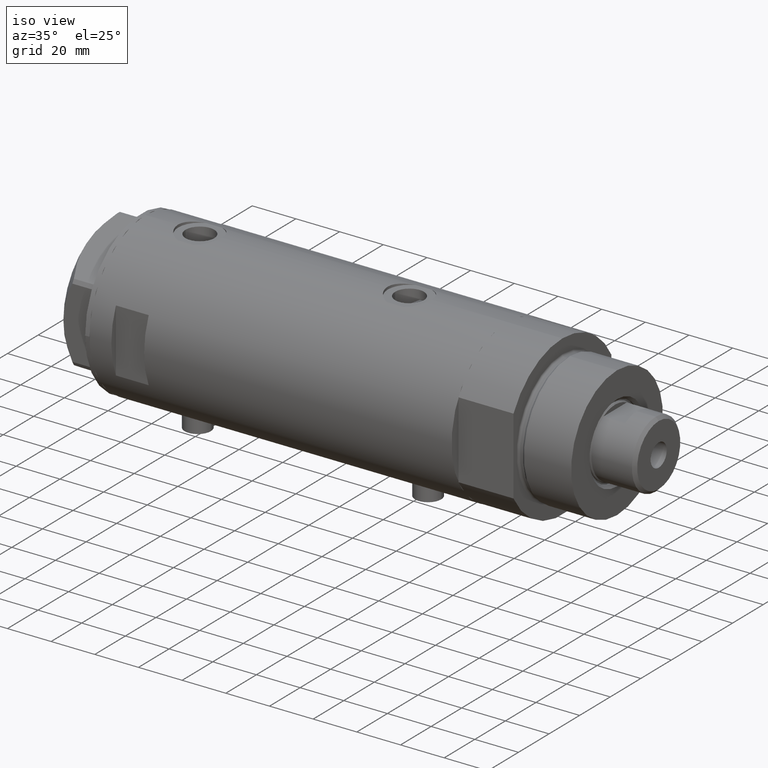
[diagram: clean part render]
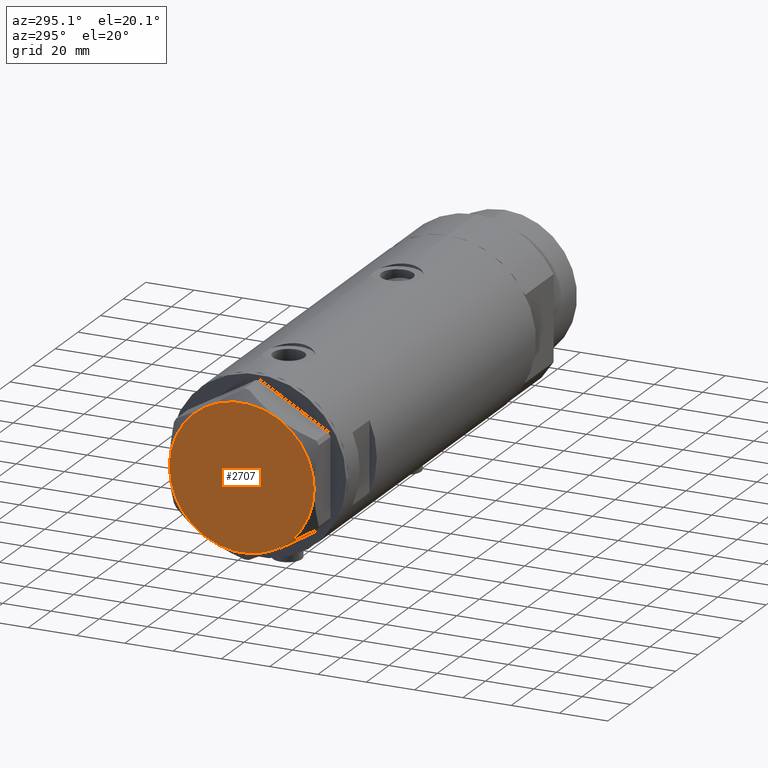
[diagram: tour spotlight — one face highlighted and labeled with its STEP entity id]
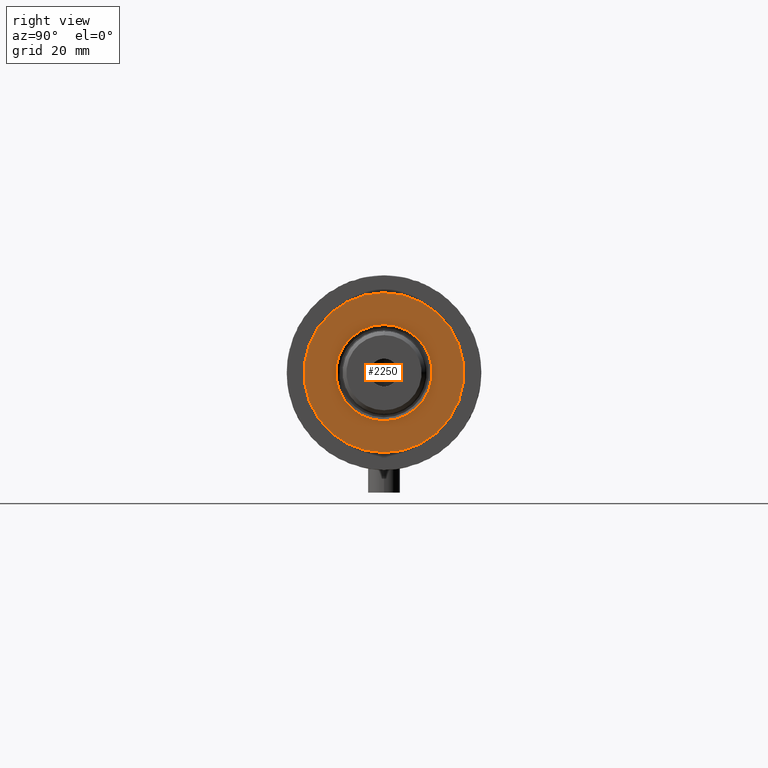
[diagram: tour spotlight — one face highlighted and labeled with its STEP entity id]
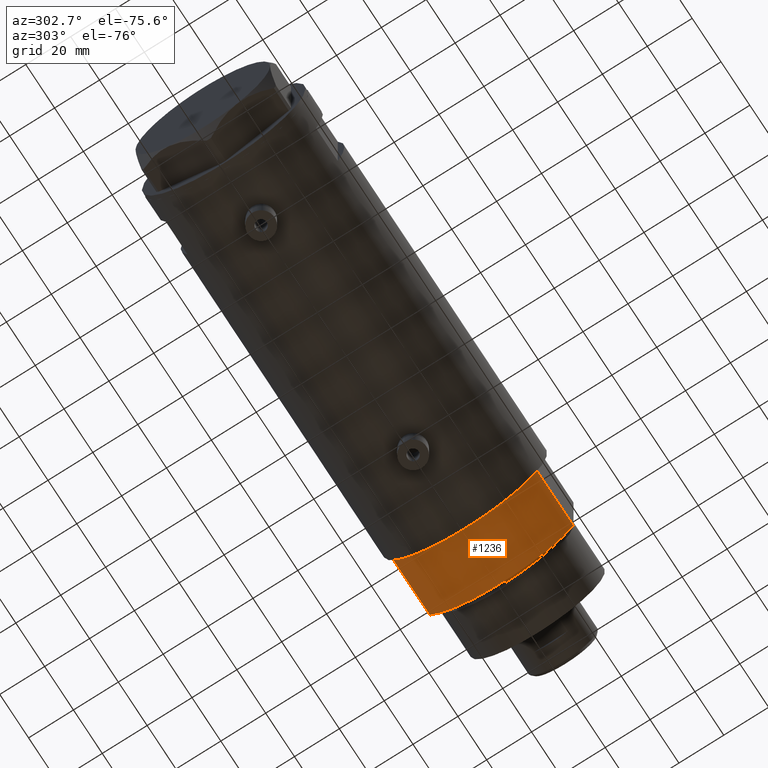
[diagram: tour spotlight — one face highlighted and labeled with its STEP entity id]
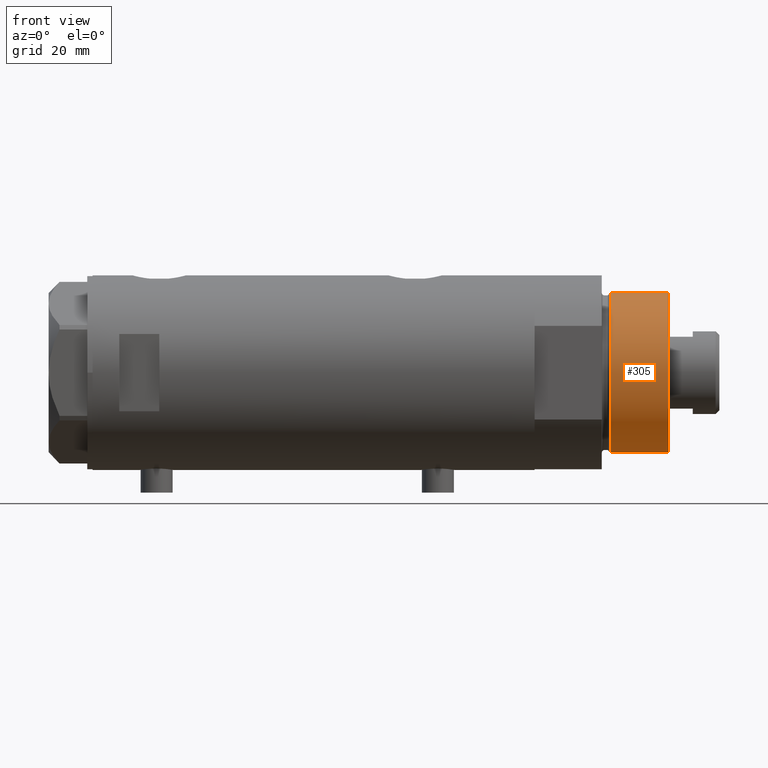
[diagram: tour spotlight — one face highlighted and labeled with its STEP entity id]
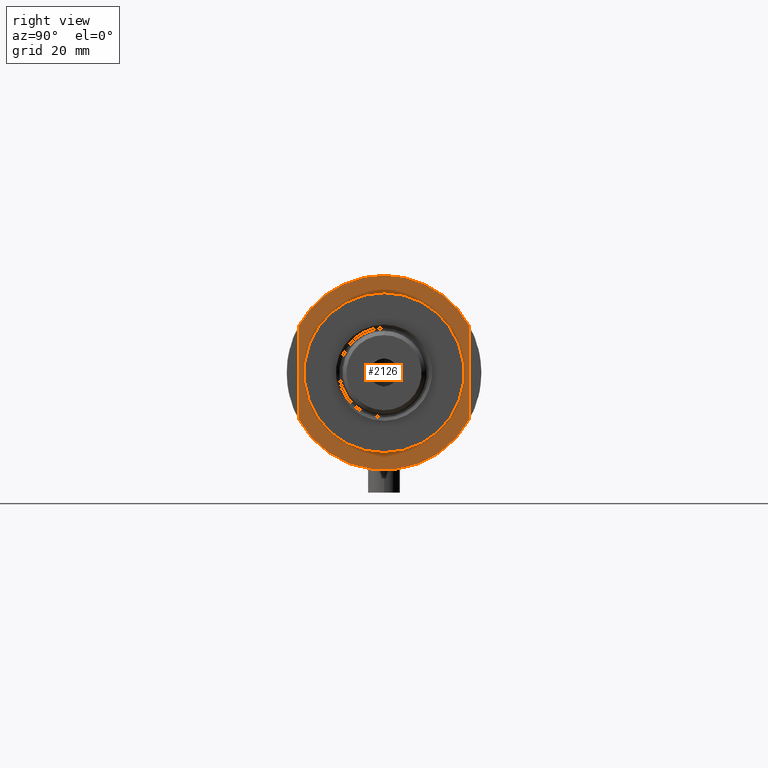
[diagram: tour spotlight — one face highlighted and labeled with its STEP entity id]
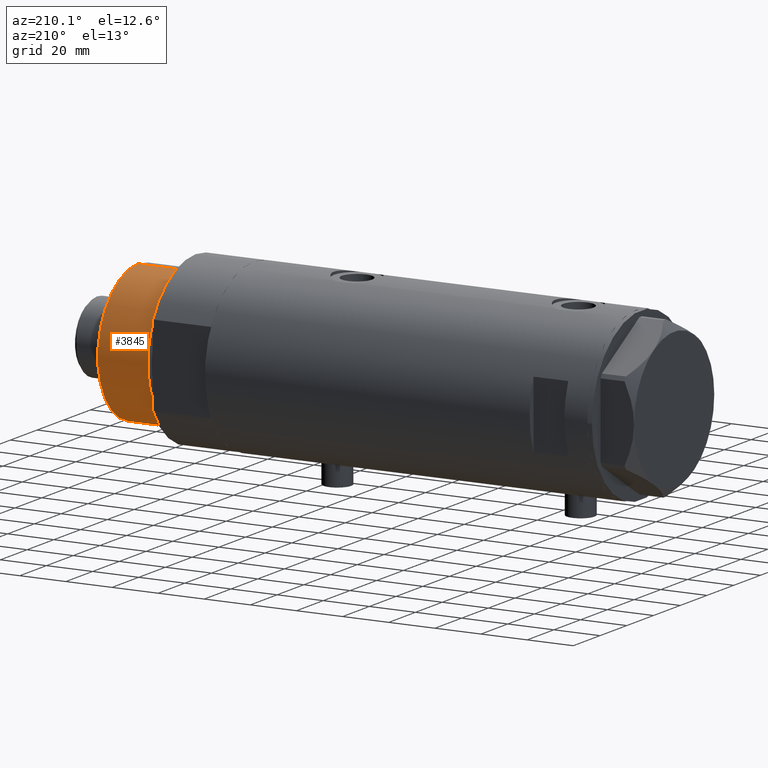
[diagram: tour spotlight — one face highlighted and labeled with its STEP entity id]
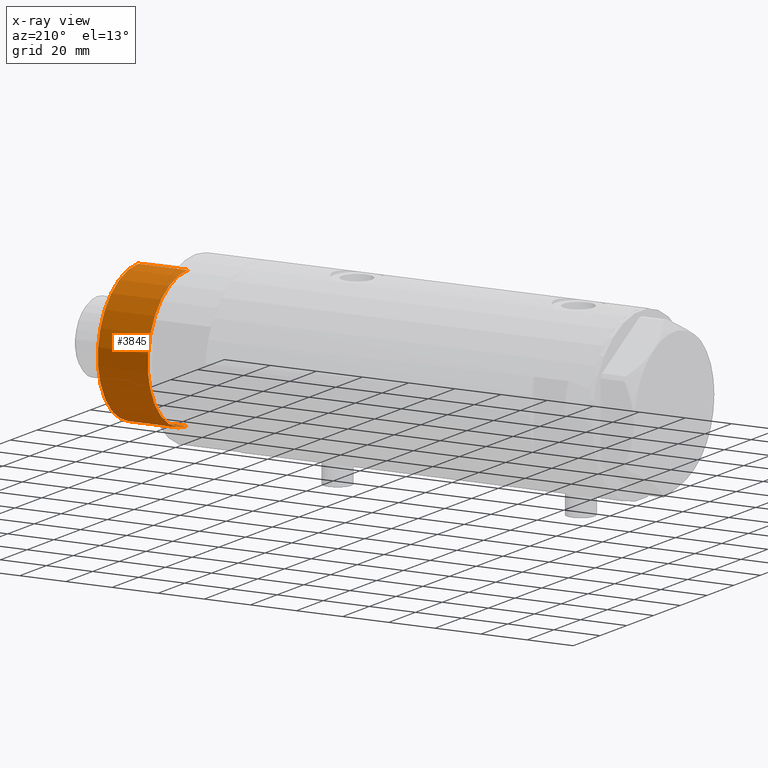
[diagram: x-ray of the same camera — body ghosted, this tour face saturated]
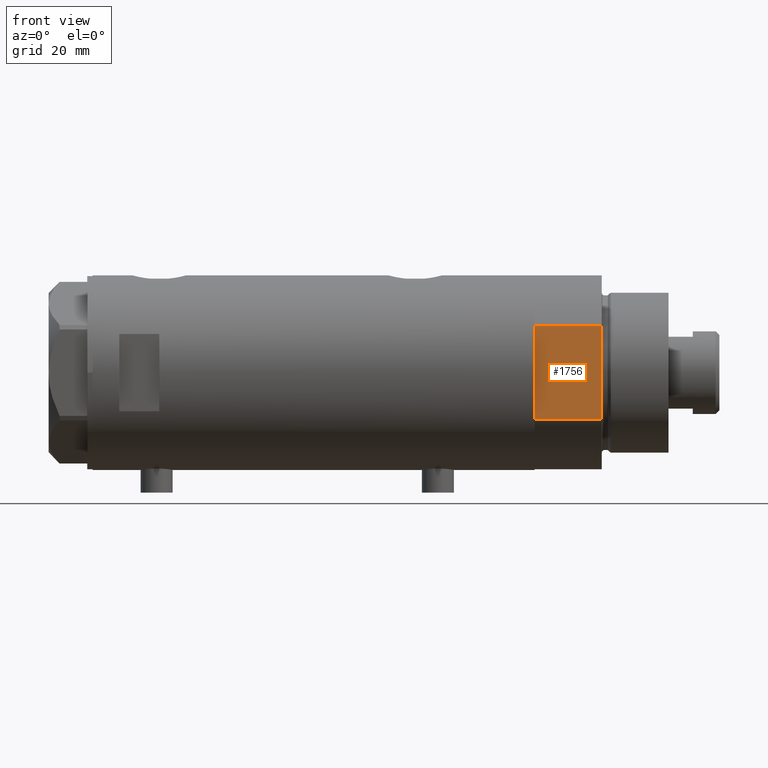
[diagram: tour spotlight — one face highlighted and labeled with its STEP entity id]
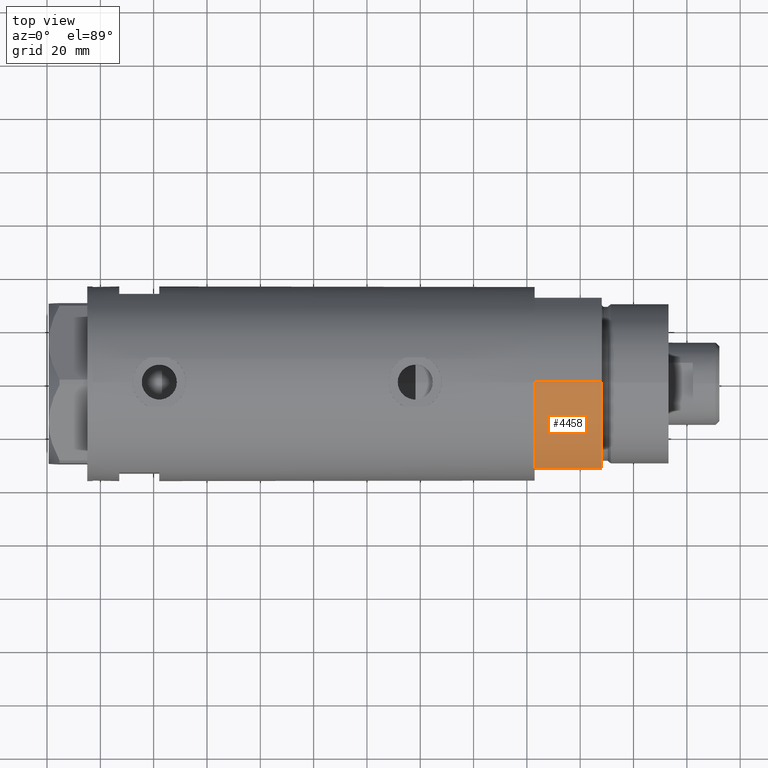
[diagram: tour spotlight — one face highlighted and labeled with its STEP entity id]
A machine part: a face-by-face anatomy tour. The part has 125 B-rep faces; the first image is the clean iso view, then the 8 largest visible faces are spotlighted one at a time (largest first), each with its STEP entity span.

Face 1 — auxiliary view, entity #2707. In plain terms, the highlighted planar face has unit normal (-1, -0, 0).
Definition (entity closure, byte-faithful):
#248 = CIRCLE ( 'NONE', #2521, 30.00000000000000000 ) ;
#506 = ORIENTED_EDGE ( 'NONE', *, *, #2036, .T. ) ;
#693 = DIRECTION ( 'NONE',  ( 0.000000000000000000, 0.000000000000000000, 1.000000000000000000 ) ) ;
#697 = CARTESIAN_POINT ( 'NONE',  ( -30.00000000000000000, 0.000000000000000000, 14.50000000000000000 ) ) ;
#738 = AXIS2_PLACEMENT_3D ( 'NONE', #2884, #693, #2568 ) ;
#841 = DIRECTION ( 'NONE',  ( 1.000000000000000000, 0.000000000000000000, -0.000000000000000000 ) ) ;
#937 = CARTESIAN_POINT ( 'NONE',  ( 0.000000000000000000, 0.000000000000000000, 14.50000000000000000 ) ) ;
#961 = VERTEX_POINT ( 'NONE', #697 ) ;
#1097 = EDGE_CURVE ( 'NONE', #1248, #961, #1182, .T. ) ;
#1116 = CIRCLE ( 'NONE', #2830, 30.00000000000000000 ) ;
#1182 = CIRCLE ( 'NONE', #3965, 30.00000000000000000 ) ;
#1248 = VERTEX_POINT ( 'NONE', #2301 ) ;
#1261 = DIRECTION ( 'NONE',  ( 0.000000000000000000, 0.000000000000000000, 1.000000000000000000 ) ) ;
#1301 = VERTEX_POINT ( 'NONE', #1896 ) ;
#1468 = CARTESIAN_POINT ( 'NONE',  ( 0.000000000000000000, 0.000000000000000000, 14.50000000000000000 ) ) ;
#1653 = DIRECTION ( 'NONE',  ( 1.000000000000000000, 0.000000000000000000, 0.000000000000000000 ) ) ;
#1724 = ORIENTED_EDGE ( 'NONE', *, *, #4446, .T. ) ;
#1819 = DIRECTION ( 'NONE',  ( 0.000000000000000000, 0.000000000000000000, 1.000000000000000000 ) ) ;
#1896 = CARTESIAN_POINT ( 'NONE',  ( 14.99999999999999467, 25.98076211353316367, 14.50000000000000000 ) ) ;
#1965 = AXIS2_PLACEMENT_3D ( 'NONE', #1468, #3185, #2858 ) ;
#2036 = EDGE_CURVE ( 'NONE', #3507, #3456, #3740, .T. ) ;
#2063 = AXIS2_PLACEMENT_3D ( 'NONE', #937, #1261, #1653 ) ;
#2095 = CARTESIAN_POINT ( 'NONE',  ( 0.000000000000000000, 0.000000000000000000, 14.50000000000000000 ) ) ;
#2187 = CARTESIAN_POINT ( 'NONE',  ( 0.000000000000000000, 0.000000000000000000, 14.50000000000000000 ) ) ;
#2233 = ORIENTED_EDGE ( 'NONE', *, *, #3414, .T. ) ;
#2249 = DIRECTION ( 'NONE',  ( 1.000000000000000000, 0.000000000000000000, 0.000000000000000000 ) ) ;
#2301 = CARTESIAN_POINT ( 'NONE',  ( -14.99999999999999645, 25.98076211353316367, 14.50000000000000000 ) ) ;
#2450 = DIRECTION ( 'NONE',  ( 1.000000000000000000, 0.000000000000000000, 0.000000000000000000 ) ) ;
#2477 = FACE_OUTER_BOUND ( 'NONE', #3496, .T. ) ;
#2521 = AXIS2_PLACEMENT_3D ( 'NONE', #2095, #3534, #2450 ) ;
#2568 = DIRECTION ( 'NONE',  ( 1.000000000000000000, 0.000000000000000000, 0.000000000000000000 ) ) ;
#2580 = DIRECTION ( 'NONE',  ( 0.000000000000000000, 0.000000000000000000, 1.000000000000000000 ) ) ;
#2707 = ADVANCED_FACE ( 'NONE', ( #2477 ), #3943, .T. ) ;
#2830 = AXIS2_PLACEMENT_3D ( 'NONE', #2187, #1819, #4337 ) ;
#2858 = DIRECTION ( 'NONE',  ( 1.000000000000000000, 0.000000000000000000, 0.000000000000000000 ) ) ;
#2884 = CARTESIAN_POINT ( 'NONE',  ( 0.000000000000000000, 0.000000000000000000, 14.50000000000000000 ) ) ;
#2991 = AXIS2_PLACEMENT_3D ( 'NONE', #3274, #2580, #841 ) ;
#3093 = EDGE_CURVE ( 'NONE', #3299, #1301, #4710, .T. ) ;
#3185 = DIRECTION ( 'NONE',  ( 0.000000000000000000, 0.000000000000000000, 1.000000000000000000 ) ) ;
#3199 = CARTESIAN_POINT ( 'NONE',  ( 14.99999999999998757, -25.98076211353316722, 14.50000000000000000 ) ) ;
#3274 = CARTESIAN_POINT ( 'NONE',  ( 0.000000000000000000, 0.000000000000000000, 14.50000000000000000 ) ) ;
#3288 = CARTESIAN_POINT ( 'NONE',  ( 0.000000000000000000, 0.000000000000000000, 14.50000000000000000 ) ) ;
#3299 = VERTEX_POINT ( 'NONE', #4148 ) ;
#3328 = ORIENTED_EDGE ( 'NONE', *, *, #1097, .T. ) ;
#3414 = EDGE_CURVE ( 'NONE', #961, #3507, #248, .T. ) ;
#3456 = VERTEX_POINT ( 'NONE', #3199 ) ;
#3496 = EDGE_LOOP ( 'NONE', ( #4369, #4675, #1724, #3328, #2233, #506 ) ) ;
#3507 = VERTEX_POINT ( 'NONE', #3966 ) ;
#3516 = EDGE_CURVE ( 'NONE', #3456, #3299, #1116, .T. ) ;
#3534 = DIRECTION ( 'NONE',  ( 0.000000000000000000, 0.000000000000000000, 1.000000000000000000 ) ) ;
#3740 = CIRCLE ( 'NONE', #738, 30.00000000000000000 ) ;
#3943 = PLANE ( 'NONE',  #2991 ) ;
#3965 = AXIS2_PLACEMENT_3D ( 'NONE', #3288, #4695, #2249 ) ;
#3966 = CARTESIAN_POINT ( 'NONE',  ( -14.99999999999999645, -25.98076211353316367, 14.50000000000000000 ) ) ;
#4125 = CIRCLE ( 'NONE', #2063, 30.00000000000000000 ) ;
#4148 = CARTESIAN_POINT ( 'NONE',  ( 30.00000000000000000, 9.013887592422954582E-15, 14.50000000000000000 ) ) ;
#4337 = DIRECTION ( 'NONE',  ( 1.000000000000000000, 0.000000000000000000, 0.000000000000000000 ) ) ;
#4369 = ORIENTED_EDGE ( 'NONE', *, *, #3516, .T. ) ;
#4446 = EDGE_CURVE ( 'NONE', #1301, #1248, #4125, .T. ) ;
#4675 = ORIENTED_EDGE ( 'NONE', *, *, #3093, .T. ) ;
#4695 = DIRECTION ( 'NONE',  ( 0.000000000000000000, 0.000000000000000000, 1.000000000000000000 ) ) ;
#4710 = CIRCLE ( 'NONE', #1965, 30.00000000000000000 ) ;

Face 2 — right view, entity #2250. In plain terms, the highlighted planar face has unit normal (1, 0, -0).
Definition (entity closure, byte-faithful):
#239 = PLANE ( 'NONE',  #2683 ) ;
#261 = VERTEX_POINT ( 'NONE', #4144 ) ;
#369 = DIRECTION ( 'NONE',  ( 1.000000000000000000, 0.000000000000000000, 0.000000000000000000 ) ) ;
#453 = EDGE_CURVE ( 'NONE', #2412, #2578, #1402, .T. ) ;
#842 = EDGE_CURVE ( 'NONE', #2578, #2412, #2197, .T. ) ;
#938 = AXIS2_PLACEMENT_3D ( 'NONE', #3504, #4283, #3151 ) ;
#1108 = DIRECTION ( 'NONE',  ( 0.000000000000000000, 0.000000000000000000, 1.000000000000000000 ) ) ;
#1263 = AXIS2_PLACEMENT_3D ( 'NONE', #2770, #2085, #2409 ) ;
#1358 = DIRECTION ( 'NONE',  ( 1.000000000000000000, 0.000000000000000000, 0.000000000000000000 ) ) ;
#1402 = CIRCLE ( 'NONE', #938, 30.00000000000000000 ) ;
#1735 = CARTESIAN_POINT ( 'NONE',  ( 0.000000000000000000, 0.000000000000000000, 50.19999999999999574 ) ) ;
#2065 = CARTESIAN_POINT ( 'NONE',  ( -30.00000000000000000, 0.000000000000000000, 50.19999999999999574 ) ) ;
#2085 = DIRECTION ( 'NONE',  ( -0.000000000000000000, -0.000000000000000000, -1.000000000000000000 ) ) ;
#2197 = CIRCLE ( 'NONE', #3280, 30.00000000000000000 ) ;
#2236 = EDGE_CURVE ( 'NONE', #261, #4614, #3813, .T. ) ;
#2245 = EDGE_LOOP ( 'NONE', ( #3032, #4669 ) ) ;
#2250 = ADVANCED_FACE ( 'NONE', ( #3526, #4230 ), #239, .T. ) ;
#2311 = EDGE_LOOP ( 'NONE', ( #3266, #4352 ) ) ;
#2409 = DIRECTION ( 'NONE',  ( 1.000000000000000000, 0.000000000000000000, 0.000000000000000000 ) ) ;
#2412 = VERTEX_POINT ( 'NONE', #2437 ) ;
#2437 = CARTESIAN_POINT ( 'NONE',  ( 30.00000000000000000, 3.673940397442058389E-15, 50.19999999999999574 ) ) ;
#2578 = VERTEX_POINT ( 'NONE', #2065 ) ;
#2683 = AXIS2_PLACEMENT_3D ( 'NONE', #1735, #4556, #4207 ) ;
#2701 = EDGE_CURVE ( 'NONE', #4614, #261, #2745, .T. ) ;
#2745 = CIRCLE ( 'NONE', #4549, 18.04999999999996874 ) ;
#2770 = CARTESIAN_POINT ( 'NONE',  ( 0.000000000000000000, 0.000000000000000000, 50.19999999999999574 ) ) ;
#3032 = ORIENTED_EDGE ( 'NONE', *, *, #2701, .T. ) ;
#3151 = DIRECTION ( 'NONE',  ( 1.000000000000000000, 0.000000000000000000, 0.000000000000000000 ) ) ;
#3177 = DIRECTION ( 'NONE',  ( -0.000000000000000000, -0.000000000000000000, -1.000000000000000000 ) ) ;
#3266 = ORIENTED_EDGE ( 'NONE', *, *, #842, .T. ) ;
#3280 = AXIS2_PLACEMENT_3D ( 'NONE', #4397, #1108, #369 ) ;
#3484 = CARTESIAN_POINT ( 'NONE',  ( 0.000000000000000000, 0.000000000000000000, 50.19999999999999574 ) ) ;
#3504 = CARTESIAN_POINT ( 'NONE',  ( 0.000000000000000000, 0.000000000000000000, 50.19999999999999574 ) ) ;
#3526 = FACE_BOUND ( 'NONE', #2245, .T. ) ;
#3813 = CIRCLE ( 'NONE', #1263, 18.04999999999996874 ) ;
#4144 = CARTESIAN_POINT ( 'NONE',  ( -18.04999999999996874, 2.210487472460968951E-15, 50.19999999999999574 ) ) ;
#4207 = DIRECTION ( 'NONE',  ( 1.000000000000000000, 0.000000000000000000, -0.000000000000000000 ) ) ;
#4230 = FACE_OUTER_BOUND ( 'NONE', #2311, .T. ) ;
#4283 = DIRECTION ( 'NONE',  ( 0.000000000000000000, 0.000000000000000000, 1.000000000000000000 ) ) ;
#4343 = CARTESIAN_POINT ( 'NONE',  ( 18.04999999999996874, 0.000000000000000000, 50.19999999999999574 ) ) ;
#4352 = ORIENTED_EDGE ( 'NONE', *, *, #453, .T. ) ;
#4397 = CARTESIAN_POINT ( 'NONE',  ( 0.000000000000000000, 0.000000000000000000, 50.19999999999999574 ) ) ;
#4549 = AXIS2_PLACEMENT_3D ( 'NONE', #3484, #3177, #1358 ) ;
#4556 = DIRECTION ( 'NONE',  ( 0.000000000000000000, 0.000000000000000000, 1.000000000000000000 ) ) ;
#4614 = VERTEX_POINT ( 'NONE', #4343 ) ;
#4669 = ORIENTED_EDGE ( 'NONE', *, *, #2236, .T. ) ;

Face 3 — auxiliary view, entity #1236. In plain terms, the highlighted cylindrical surface (partial cylindrical patch) has radius 36.5 mm, axis along (-1, -0, 0).
Definition (entity closure, byte-faithful):
#23 = EDGE_CURVE ( 'NONE', #1382, #1335, #151, .T. ) ;
#93 = EDGE_CURVE ( 'NONE', #3952, #1374, #2997, .T. ) ;
#117 = ORIENTED_EDGE ( 'NONE', *, *, #23, .T. ) ;
#151 = LINE ( 'NONE', #3538, #1639 ) ;
#549 = DIRECTION ( 'NONE',  ( -0.000000000000000000, -0.000000000000000000, 1.000000000000000000 ) ) ;
#708 = CARTESIAN_POINT ( 'NONE',  ( 17.55704986607943141, -32.00000000000000000, 0.000000000000000000 ) ) ;
#850 = CARTESIAN_POINT ( 'NONE',  ( 0.000000000000000000, 0.000000000000000000, 25.19999999999999929 ) ) ;
#1166 = DIRECTION ( 'NONE',  ( -1.000000000000000000, 0.000000000000000000, 0.000000000000000000 ) ) ;
#1173 = VECTOR ( 'NONE', #3662, 1000.000000000000000 ) ;
#1236 = ADVANCED_FACE ( 'NONE', ( #3474 ), #1949, .T. ) ;
#1335 = VERTEX_POINT ( 'NONE', #2728 ) ;
#1374 = VERTEX_POINT ( 'NONE', #2451 ) ;
#1382 = VERTEX_POINT ( 'NONE', #3700 ) ;
#1549 = ORIENTED_EDGE ( 'NONE', *, *, #1912, .F. ) ;
#1639 = VECTOR ( 'NONE', #549, 1000.000000000000000 ) ;
#1703 = CARTESIAN_POINT ( 'NONE',  ( 0.000000000000000000, 0.000000000000000000, 0.000000000000000000 ) ) ;
#1822 = DIRECTION ( 'NONE',  ( 0.000000000000000000, 0.000000000000000000, 1.000000000000000000 ) ) ;
#1853 = ORIENTED_EDGE ( 'NONE', *, *, #93, .F. ) ;
#1912 = EDGE_CURVE ( 'NONE', #1374, #1335, #4266, .T. ) ;
#1949 = CYLINDRICAL_SURFACE ( 'NONE', #2119, 36.50000000000000000 ) ;
#2087 = EDGE_LOOP ( 'NONE', ( #1549, #1853, #3489, #117 ) ) ;
#2119 = AXIS2_PLACEMENT_3D ( 'NONE', #850, #3421, #1166 ) ;
#2434 = EDGE_CURVE ( 'NONE', #3952, #1382, #2972, .T. ) ;
#2451 = CARTESIAN_POINT ( 'NONE',  ( 17.55704986607943496, -32.00000000000000000, 25.19999999999999929 ) ) ;
#2596 = DIRECTION ( 'NONE',  ( 0.000000000000000000, 0.000000000000000000, 1.000000000000000000 ) ) ;
#2728 = CARTESIAN_POINT ( 'NONE',  ( 17.55704986607943496, 32.00000000000000000, 25.19999999999999929 ) ) ;
#2753 = AXIS2_PLACEMENT_3D ( 'NONE', #3293, #2596, #2978 ) ;
#2888 = CARTESIAN_POINT ( 'NONE',  ( 17.55704986607943141, -32.00000000000000000, 0.000000000000000000 ) ) ;
#2897 = AXIS2_PLACEMENT_3D ( 'NONE', #1703, #1822, #3183 ) ;
#2972 = CIRCLE ( 'NONE', #2897, 36.50000000000000000 ) ;
#2978 = DIRECTION ( 'NONE',  ( 1.000000000000000000, 0.000000000000000000, 0.000000000000000000 ) ) ;
#2997 = LINE ( 'NONE', #708, #1173 ) ;
#3183 = DIRECTION ( 'NONE',  ( 1.000000000000000000, 0.000000000000000000, 0.000000000000000000 ) ) ;
#3293 = CARTESIAN_POINT ( 'NONE',  ( 0.000000000000000000, 0.000000000000000000, 25.19999999999999929 ) ) ;
#3421 = DIRECTION ( 'NONE',  ( -0.000000000000000000, -0.000000000000000000, -1.000000000000000000 ) ) ;
#3474 = FACE_OUTER_BOUND ( 'NONE', #2087, .T. ) ;
#3489 = ORIENTED_EDGE ( 'NONE', *, *, #2434, .T. ) ;
#3538 = CARTESIAN_POINT ( 'NONE',  ( 17.55704986607943141, 32.00000000000000000, 0.000000000000000000 ) ) ;
#3662 = DIRECTION ( 'NONE',  ( -0.000000000000000000, -0.000000000000000000, 1.000000000000000000 ) ) ;
#3700 = CARTESIAN_POINT ( 'NONE',  ( 17.55704986607943496, 32.00000000000000000, 0.000000000000000000 ) ) ;
#3952 = VERTEX_POINT ( 'NONE', #2888 ) ;
#4266 = CIRCLE ( 'NONE', #2753, 36.50000000000000000 ) ;

Face 4 — front view, entity #305. In plain terms, the highlighted cylindrical surface (partial cylindrical patch) has radius 30 mm, axis along (-1, -0, 0).
Definition (entity closure, byte-faithful):
#16 = FACE_OUTER_BOUND ( 'NONE', #1993, .T. ) ;
#135 = DIRECTION ( 'NONE',  ( -1.000000000000000000, 0.000000000000000000, 0.000000000000000000 ) ) ;
#159 = AXIS2_PLACEMENT_3D ( 'NONE', #2633, #773, #135 ) ;
#240 = VECTOR ( 'NONE', #707, 1000.000000000000000 ) ;
#305 = ADVANCED_FACE ( 'NONE', ( #16 ), #494, .T. ) ;
#369 = DIRECTION ( 'NONE',  ( 1.000000000000000000, 0.000000000000000000, 0.000000000000000000 ) ) ;
#494 = CYLINDRICAL_SURFACE ( 'NONE', #159, 30.00000000000000000 ) ;
#707 = DIRECTION ( 'NONE',  ( -0.000000000000000000, -0.000000000000000000, -1.000000000000000000 ) ) ;
#773 = DIRECTION ( 'NONE',  ( -0.000000000000000000, -0.000000000000000000, -1.000000000000000000 ) ) ;
#783 = CARTESIAN_POINT ( 'NONE',  ( 30.00000000000000000, 3.673940397442058389E-15, 50.19999999999999574 ) ) ;
#842 = EDGE_CURVE ( 'NONE', #2578, #2412, #2197, .T. ) ;
#997 = ORIENTED_EDGE ( 'NONE', *, *, #4476, .T. ) ;
#1108 = DIRECTION ( 'NONE',  ( 0.000000000000000000, 0.000000000000000000, 1.000000000000000000 ) ) ;
#1126 = ORIENTED_EDGE ( 'NONE', *, *, #4255, .F. ) ;
#1336 = DIRECTION ( 'NONE',  ( 1.000000000000000000, 0.000000000000000000, 0.000000000000000000 ) ) ;
#1993 = EDGE_LOOP ( 'NONE', ( #1126, #2329, #2709, #997 ) ) ;
#2065 = CARTESIAN_POINT ( 'NONE',  ( -30.00000000000000000, 0.000000000000000000, 50.19999999999999574 ) ) ;
#2197 = CIRCLE ( 'NONE', #3280, 30.00000000000000000 ) ;
#2329 = ORIENTED_EDGE ( 'NONE', *, *, #842, .F. ) ;
#2412 = VERTEX_POINT ( 'NONE', #2437 ) ;
#2420 = EDGE_CURVE ( 'NONE', #2578, #4508, #3546, .T. ) ;
#2437 = CARTESIAN_POINT ( 'NONE',  ( 30.00000000000000000, 3.673940397442058389E-15, 50.19999999999999574 ) ) ;
#2483 = CARTESIAN_POINT ( 'NONE',  ( 0.000000000000000000, 0.000000000000000000, 28.57384048104054486 ) ) ;
#2578 = VERTEX_POINT ( 'NONE', #2065 ) ;
#2633 = CARTESIAN_POINT ( 'NONE',  ( 0.000000000000000000, 0.000000000000000000, 50.19999999999999574 ) ) ;
#2709 = ORIENTED_EDGE ( 'NONE', *, *, #2420, .T. ) ;
#3027 = VERTEX_POINT ( 'NONE', #4649 ) ;
#3208 = CARTESIAN_POINT ( 'NONE',  ( -30.00000000000000000, 0.000000000000000000, 28.57384048104054486 ) ) ;
#3280 = AXIS2_PLACEMENT_3D ( 'NONE', #4397, #1108, #369 ) ;
#3443 = AXIS2_PLACEMENT_3D ( 'NONE', #2483, #4645, #1336 ) ;
#3546 = LINE ( 'NONE', #3660, #240 ) ;
#3660 = CARTESIAN_POINT ( 'NONE',  ( -30.00000000000000000, 0.000000000000000000, 50.19999999999999574 ) ) ;
#4111 = DIRECTION ( 'NONE',  ( -0.000000000000000000, -0.000000000000000000, -1.000000000000000000 ) ) ;
#4255 = EDGE_CURVE ( 'NONE', #2412, #3027, #4420, .T. ) ;
#4397 = CARTESIAN_POINT ( 'NONE',  ( 0.000000000000000000, 0.000000000000000000, 50.19999999999999574 ) ) ;
#4420 = LINE ( 'NONE', #783, #4717 ) ;
#4476 = EDGE_CURVE ( 'NONE', #4508, #3027, #4723, .T. ) ;
#4508 = VERTEX_POINT ( 'NONE', #3208 ) ;
#4645 = DIRECTION ( 'NONE',  ( -0.000000000000000000, -0.000000000000000000, 1.000000000000000000 ) ) ;
#4649 = CARTESIAN_POINT ( 'NONE',  ( 30.00000000000000000, 3.673940397442058389E-15, 28.57384048104054486 ) ) ;
#4717 = VECTOR ( 'NONE', #4111, 1000.000000000000000 ) ;
#4723 = CIRCLE ( 'NONE', #3443, 30.00000000000000000 ) ;

Face 5 — right view, entity #2126. In plain terms, the highlighted planar face has unit normal (1, 0, -0).
Definition (entity closure, byte-faithful):
#112 = DIRECTION ( 'NONE',  ( 0.000000000000000000, 0.000000000000000000, 1.000000000000000000 ) ) ;
#140 = CARTESIAN_POINT ( 'NONE',  ( 0.000000000000000000, 0.000000000000000000, 25.19999999999999929 ) ) ;
#177 = DIRECTION ( 'NONE',  ( 0.000000000000000000, 0.000000000000000000, 1.000000000000000000 ) ) ;
#207 = DIRECTION ( 'NONE',  ( 1.000000000000000000, 0.000000000000000000, 0.000000000000000000 ) ) ;
#318 = EDGE_CURVE ( 'NONE', #2139, #3651, #4249, .T. ) ;
#464 = EDGE_CURVE ( 'NONE', #2809, #1335, #3530, .T. ) ;
#526 = CARTESIAN_POINT ( 'NONE',  ( 0.000000000000000000, 0.000000000000000000, 25.19999999999999929 ) ) ;
#622 = LINE ( 'NONE', #3984, #2752 ) ;
#692 = CARTESIAN_POINT ( 'NONE',  ( -17.55704986607943496, 32.00000000000000000, 25.19999999999999929 ) ) ;
#777 = FACE_BOUND ( 'NONE', #2852, .T. ) ;
#931 = DIRECTION ( 'NONE',  ( 0.000000000000000000, 0.000000000000000000, 1.000000000000000000 ) ) ;
#1005 = DIRECTION ( 'NONE',  ( -1.000000000000000000, -0.000000000000000000, -0.000000000000000000 ) ) ;
#1242 = ORIENTED_EDGE ( 'NONE', *, *, #3827, .F. ) ;
#1276 = AXIS2_PLACEMENT_3D ( 'NONE', #1428, #4689, #3618 ) ;
#1335 = VERTEX_POINT ( 'NONE', #2728 ) ;
#1374 = VERTEX_POINT ( 'NONE', #2451 ) ;
#1428 = CARTESIAN_POINT ( 'NONE',  ( 0.000000000000000000, 0.000000000000000000, 25.19999999999999929 ) ) ;
#1500 = CIRCLE ( 'NONE', #1276, 30.00000000000000355 ) ;
#1570 = DIRECTION ( 'NONE',  ( 1.000000000000000000, 0.000000000000000000, -0.000000000000000000 ) ) ;
#1577 = AXIS2_PLACEMENT_3D ( 'NONE', #526, #931, #3157 ) ;
#1582 = CIRCLE ( 'NONE', #2436, 30.00000000000000355 ) ;
#1732 = EDGE_LOOP ( 'NONE', ( #1242, #3689, #2891, #2845, #2186 ) ) ;
#1808 = EDGE_CURVE ( 'NONE', #3124, #3793, #1582, .T. ) ;
#1912 = EDGE_CURVE ( 'NONE', #1374, #1335, #4266, .T. ) ;
#2052 = CIRCLE ( 'NONE', #1577, 36.50000000000000000 ) ;
#2126 = ADVANCED_FACE ( 'NONE', ( #777, #3022 ), #3108, .T. ) ;
#2139 = VERTEX_POINT ( 'NONE', #3154 ) ;
#2149 = DIRECTION ( 'NONE',  ( -0.000000000000000000, -0.000000000000000000, -1.000000000000000000 ) ) ;
#2182 = ORIENTED_EDGE ( 'NONE', *, *, #4469, .T. ) ;
#2186 = ORIENTED_EDGE ( 'NONE', *, *, #318, .T. ) ;
#2436 = AXIS2_PLACEMENT_3D ( 'NONE', #4291, #2149, #207 ) ;
#2451 = CARTESIAN_POINT ( 'NONE',  ( 17.55704986607943496, -32.00000000000000000, 25.19999999999999929 ) ) ;
#2529 = CARTESIAN_POINT ( 'NONE',  ( -30.00000000000000355, 3.673940397442059178E-15, 25.19999999999999929 ) ) ;
#2596 = DIRECTION ( 'NONE',  ( 0.000000000000000000, 0.000000000000000000, 1.000000000000000000 ) ) ;
#2600 = DIRECTION ( 'NONE',  ( 1.000000000000000000, 0.000000000000000000, 0.000000000000000000 ) ) ;
#2728 = CARTESIAN_POINT ( 'NONE',  ( 17.55704986607943496, 32.00000000000000000, 25.19999999999999929 ) ) ;
#2752 = VECTOR ( 'NONE', #1005, 1000.000000000000000 ) ;
#2753 = AXIS2_PLACEMENT_3D ( 'NONE', #3293, #2596, #2978 ) ;
#2809 = VERTEX_POINT ( 'NONE', #692 ) ;
#2845 = ORIENTED_EDGE ( 'NONE', *, *, #3321, .T. ) ;
#2852 = EDGE_LOOP ( 'NONE', ( #4317, #2182 ) ) ;
#2891 = ORIENTED_EDGE ( 'NONE', *, *, #464, .F. ) ;
#2894 = AXIS2_PLACEMENT_3D ( 'NONE', #3557, #112, #3148 ) ;
#2978 = DIRECTION ( 'NONE',  ( 1.000000000000000000, 0.000000000000000000, 0.000000000000000000 ) ) ;
#3022 = FACE_OUTER_BOUND ( 'NONE', #1732, .T. ) ;
#3108 = PLANE ( 'NONE',  #3362 ) ;
#3124 = VERTEX_POINT ( 'NONE', #4618 ) ;
#3148 = DIRECTION ( 'NONE',  ( 1.000000000000000000, 0.000000000000000000, 0.000000000000000000 ) ) ;
#3154 = CARTESIAN_POINT ( 'NONE',  ( -36.50000000000000000, 0.000000000000000000, 25.19999999999999929 ) ) ;
#3157 = DIRECTION ( 'NONE',  ( 1.000000000000000000, 0.000000000000000000, 0.000000000000000000 ) ) ;
#3293 = CARTESIAN_POINT ( 'NONE',  ( 0.000000000000000000, 0.000000000000000000, 25.19999999999999929 ) ) ;
#3321 = EDGE_CURVE ( 'NONE', #2809, #2139, #2052, .T. ) ;
#3362 = AXIS2_PLACEMENT_3D ( 'NONE', #140, #177, #1570 ) ;
#3530 = LINE ( 'NONE', #3654, #3661 ) ;
#3557 = CARTESIAN_POINT ( 'NONE',  ( 0.000000000000000000, 0.000000000000000000, 25.19999999999999929 ) ) ;
#3618 = DIRECTION ( 'NONE',  ( 1.000000000000000000, 0.000000000000000000, 0.000000000000000000 ) ) ;
#3651 = VERTEX_POINT ( 'NONE', #4502 ) ;
#3654 = CARTESIAN_POINT ( 'NONE',  ( -17.55704986607943141, 32.00000000000000000, 25.19999999999999929 ) ) ;
#3661 = VECTOR ( 'NONE', #2600, 1000.000000000000000 ) ;
#3689 = ORIENTED_EDGE ( 'NONE', *, *, #1912, .T. ) ;
#3793 = VERTEX_POINT ( 'NONE', #2529 ) ;
#3827 = EDGE_CURVE ( 'NONE', #1374, #3651, #622, .T. ) ;
#3984 = CARTESIAN_POINT ( 'NONE',  ( -17.55704986607943141, -32.00000000000000000, 25.19999999999999929 ) ) ;
#4249 = CIRCLE ( 'NONE', #2894, 36.50000000000000000 ) ;
#4266 = CIRCLE ( 'NONE', #2753, 36.50000000000000000 ) ;
#4291 = CARTESIAN_POINT ( 'NONE',  ( 0.000000000000000000, 0.000000000000000000, 25.19999999999999929 ) ) ;
#4317 = ORIENTED_EDGE ( 'NONE', *, *, #1808, .T. ) ;
#4469 = EDGE_CURVE ( 'NONE', #3793, #3124, #1500, .T. ) ;
#4502 = CARTESIAN_POINT ( 'NONE',  ( -17.55704986607943496, -32.00000000000000000, 25.19999999999999929 ) ) ;
#4618 = CARTESIAN_POINT ( 'NONE',  ( 30.00000000000000355, 0.000000000000000000, 25.19999999999999929 ) ) ;
#4689 = DIRECTION ( 'NONE',  ( -0.000000000000000000, -0.000000000000000000, -1.000000000000000000 ) ) ;

Face 6 — auxiliary view, entity #3845. An x-ray twin of the same camera follows (body ghosted, this face saturated) — the face is partly hidden behind the body. In plain terms, the highlighted cylindrical surface (partial cylindrical patch) has radius 30 mm, axis along (-1, -0, 0).
Definition (entity closure, byte-faithful):
#240 = VECTOR ( 'NONE', #707, 1000.000000000000000 ) ;
#367 = CARTESIAN_POINT ( 'NONE',  ( 0.000000000000000000, 0.000000000000000000, 28.57384048104054486 ) ) ;
#453 = EDGE_CURVE ( 'NONE', #2412, #2578, #1402, .T. ) ;
#707 = DIRECTION ( 'NONE',  ( -0.000000000000000000, -0.000000000000000000, -1.000000000000000000 ) ) ;
#722 = DIRECTION ( 'NONE',  ( -0.000000000000000000, -0.000000000000000000, -1.000000000000000000 ) ) ;
#783 = CARTESIAN_POINT ( 'NONE',  ( 30.00000000000000000, 3.673940397442058389E-15, 50.19999999999999574 ) ) ;
#938 = AXIS2_PLACEMENT_3D ( 'NONE', #3504, #4283, #3151 ) ;
#1081 = CARTESIAN_POINT ( 'NONE',  ( 0.000000000000000000, 0.000000000000000000, 50.19999999999999574 ) ) ;
#1275 = ORIENTED_EDGE ( 'NONE', *, *, #453, .F. ) ;
#1337 = AXIS2_PLACEMENT_3D ( 'NONE', #367, #1514, #1591 ) ;
#1402 = CIRCLE ( 'NONE', #938, 30.00000000000000000 ) ;
#1514 = DIRECTION ( 'NONE',  ( -0.000000000000000000, -0.000000000000000000, 1.000000000000000000 ) ) ;
#1591 = DIRECTION ( 'NONE',  ( 1.000000000000000000, 0.000000000000000000, 0.000000000000000000 ) ) ;
#2065 = CARTESIAN_POINT ( 'NONE',  ( -30.00000000000000000, 0.000000000000000000, 50.19999999999999574 ) ) ;
#2412 = VERTEX_POINT ( 'NONE', #2437 ) ;
#2420 = EDGE_CURVE ( 'NONE', #2578, #4508, #3546, .T. ) ;
#2437 = CARTESIAN_POINT ( 'NONE',  ( 30.00000000000000000, 3.673940397442058389E-15, 50.19999999999999574 ) ) ;
#2578 = VERTEX_POINT ( 'NONE', #2065 ) ;
#2712 = EDGE_CURVE ( 'NONE', #3027, #4508, #3595, .T. ) ;
#2901 = ORIENTED_EDGE ( 'NONE', *, *, #4255, .T. ) ;
#2956 = FACE_OUTER_BOUND ( 'NONE', #3848, .T. ) ;
#3027 = VERTEX_POINT ( 'NONE', #4649 ) ;
#3151 = DIRECTION ( 'NONE',  ( 1.000000000000000000, 0.000000000000000000, 0.000000000000000000 ) ) ;
#3155 = ORIENTED_EDGE ( 'NONE', *, *, #2712, .T. ) ;
#3208 = CARTESIAN_POINT ( 'NONE',  ( -30.00000000000000000, 0.000000000000000000, 28.57384048104054486 ) ) ;
#3246 = CYLINDRICAL_SURFACE ( 'NONE', #4422, 30.00000000000000000 ) ;
#3504 = CARTESIAN_POINT ( 'NONE',  ( 0.000000000000000000, 0.000000000000000000, 50.19999999999999574 ) ) ;
#3546 = LINE ( 'NONE', #3660, #240 ) ;
#3595 = CIRCLE ( 'NONE', #1337, 30.00000000000000000 ) ;
#3660 = CARTESIAN_POINT ( 'NONE',  ( -30.00000000000000000, 0.000000000000000000, 50.19999999999999574 ) ) ;
#3845 = ADVANCED_FACE ( 'NONE', ( #2956 ), #3246, .T. ) ;
#3848 = EDGE_LOOP ( 'NONE', ( #1275, #2901, #3155, #4367 ) ) ;
#4111 = DIRECTION ( 'NONE',  ( -0.000000000000000000, -0.000000000000000000, -1.000000000000000000 ) ) ;
#4255 = EDGE_CURVE ( 'NONE', #2412, #3027, #4420, .T. ) ;
#4283 = DIRECTION ( 'NONE',  ( 0.000000000000000000, 0.000000000000000000, 1.000000000000000000 ) ) ;
#4305 = DIRECTION ( 'NONE',  ( -1.000000000000000000, 0.000000000000000000, 0.000000000000000000 ) ) ;
#4367 = ORIENTED_EDGE ( 'NONE', *, *, #2420, .F. ) ;
#4420 = LINE ( 'NONE', #783, #4717 ) ;
#4422 = AXIS2_PLACEMENT_3D ( 'NONE', #1081, #722, #4305 ) ;
#4508 = VERTEX_POINT ( 'NONE', #3208 ) ;
#4649 = CARTESIAN_POINT ( 'NONE',  ( 30.00000000000000000, 3.673940397442058389E-15, 28.57384048104054486 ) ) ;
#4717 = VECTOR ( 'NONE', #4111, 1000.000000000000000 ) ;

Face 7 — front view, entity #1756. In plain terms, the highlighted planar face has unit normal (-0, 1, 0).
Definition (entity closure, byte-faithful):
#93 = EDGE_CURVE ( 'NONE', #3952, #1374, #2997, .T. ) ;
#128 = VERTEX_POINT ( 'NONE', #1695 ) ;
#164 = EDGE_CURVE ( 'NONE', #1795, #3651, #1642, .T. ) ;
#377 = CARTESIAN_POINT ( 'NONE',  ( -17.55704986607943141, -32.00000000000000000, 0.000000000000000000 ) ) ;
#546 = LINE ( 'NONE', #890, #4263 ) ;
#622 = LINE ( 'NONE', #3984, #2752 ) ;
#708 = CARTESIAN_POINT ( 'NONE',  ( 17.55704986607943141, -32.00000000000000000, 0.000000000000000000 ) ) ;
#890 = CARTESIAN_POINT ( 'NONE',  ( -17.55704986607943141, -32.00000000000000000, 0.000000000000000000 ) ) ;
#1005 = DIRECTION ( 'NONE',  ( -1.000000000000000000, -0.000000000000000000, -0.000000000000000000 ) ) ;
#1173 = VECTOR ( 'NONE', #3662, 1000.000000000000000 ) ;
#1199 = VECTOR ( 'NONE', #2244, 1000.000000000000000 ) ;
#1224 = ORIENTED_EDGE ( 'NONE', *, *, #3364, .F. ) ;
#1374 = VERTEX_POINT ( 'NONE', #2451 ) ;
#1586 = CARTESIAN_POINT ( 'NONE',  ( -17.55704986607943141, -32.00000000000000000, 0.000000000000000000 ) ) ;
#1642 = LINE ( 'NONE', #4607, #3791 ) ;
#1676 = DIRECTION ( 'NONE',  ( -1.000000000000000000, -0.000000000000000000, -0.000000000000000000 ) ) ;
#1695 = CARTESIAN_POINT ( 'NONE',  ( 0.000000000000000000, -32.00000000000000000, 0.000000000000000000 ) ) ;
#1756 = ADVANCED_FACE ( 'NONE', ( #2382 ), #3493, .F. ) ;
#1795 = VERTEX_POINT ( 'NONE', #3847 ) ;
#2116 = EDGE_LOOP ( 'NONE', ( #3112, #4133, #1224, #3572, #3260 ) ) ;
#2244 = DIRECTION ( 'NONE',  ( -1.000000000000000000, -0.000000000000000000, -0.000000000000000000 ) ) ;
#2382 = FACE_OUTER_BOUND ( 'NONE', #2116, .T. ) ;
#2451 = CARTESIAN_POINT ( 'NONE',  ( 17.55704986607943496, -32.00000000000000000, 25.19999999999999929 ) ) ;
#2663 = LINE ( 'NONE', #377, #1199 ) ;
#2752 = VECTOR ( 'NONE', #1005, 1000.000000000000000 ) ;
#2888 = CARTESIAN_POINT ( 'NONE',  ( 17.55704986607943141, -32.00000000000000000, 0.000000000000000000 ) ) ;
#2997 = LINE ( 'NONE', #708, #1173 ) ;
#3075 = DIRECTION ( 'NONE',  ( -0.000000000000000000, 1.000000000000000000, 0.000000000000000000 ) ) ;
#3112 = ORIENTED_EDGE ( 'NONE', *, *, #3827, .T. ) ;
#3194 = DIRECTION ( 'NONE',  ( -0.000000000000000000, -0.000000000000000000, 1.000000000000000000 ) ) ;
#3260 = ORIENTED_EDGE ( 'NONE', *, *, #93, .T. ) ;
#3364 = EDGE_CURVE ( 'NONE', #128, #1795, #546, .T. ) ;
#3441 = AXIS2_PLACEMENT_3D ( 'NONE', #1586, #3075, #4223 ) ;
#3493 = PLANE ( 'NONE',  #3441 ) ;
#3572 = ORIENTED_EDGE ( 'NONE', *, *, #4697, .F. ) ;
#3651 = VERTEX_POINT ( 'NONE', #4502 ) ;
#3662 = DIRECTION ( 'NONE',  ( -0.000000000000000000, -0.000000000000000000, 1.000000000000000000 ) ) ;
#3791 = VECTOR ( 'NONE', #3194, 1000.000000000000000 ) ;
#3827 = EDGE_CURVE ( 'NONE', #1374, #3651, #622, .T. ) ;
#3847 = CARTESIAN_POINT ( 'NONE',  ( -17.55704986607943496, -32.00000000000000000, 0.000000000000000000 ) ) ;
#3952 = VERTEX_POINT ( 'NONE', #2888 ) ;
#3984 = CARTESIAN_POINT ( 'NONE',  ( -17.55704986607943141, -32.00000000000000000, 25.19999999999999929 ) ) ;
#4133 = ORIENTED_EDGE ( 'NONE', *, *, #164, .F. ) ;
#4223 = DIRECTION ( 'NONE',  ( 0.000000000000000000, -0.000000000000000000, 1.000000000000000000 ) ) ;
#4263 = VECTOR ( 'NONE', #1676, 1000.000000000000000 ) ;
#4502 = CARTESIAN_POINT ( 'NONE',  ( -17.55704986607943496, -32.00000000000000000, 25.19999999999999929 ) ) ;
#4607 = CARTESIAN_POINT ( 'NONE',  ( -17.55704986607943141, -32.00000000000000000, 0.000000000000000000 ) ) ;
#4697 = EDGE_CURVE ( 'NONE', #3952, #128, #2663, .T. ) ;

Face 8 — top view, entity #4458. In plain terms, the highlighted cylindrical surface (partial cylindrical patch) has radius 36.5 mm, axis along (-1, -0, 0).
Definition (entity closure, byte-faithful):
#112 = DIRECTION ( 'NONE',  ( 0.000000000000000000, 0.000000000000000000, 1.000000000000000000 ) ) ;
#164 = EDGE_CURVE ( 'NONE', #1795, #3651, #1642, .T. ) ;
#318 = EDGE_CURVE ( 'NONE', #2139, #3651, #4249, .T. ) ;
#531 = CARTESIAN_POINT ( 'NONE',  ( 0.000000000000000000, 0.000000000000000000, 25.19999999999999929 ) ) ;
#797 = VECTOR ( 'NONE', #1734, 1000.000000000000000 ) ;
#882 = ORIENTED_EDGE ( 'NONE', *, *, #318, .F. ) ;
#889 = ORIENTED_EDGE ( 'NONE', *, *, #164, .T. ) ;
#1006 = CARTESIAN_POINT ( 'NONE',  ( -36.50000000000000000, 0.000000000000000000, 0.000000000000000000 ) ) ;
#1056 = EDGE_CURVE ( 'NONE', #2139, #2710, #3553, .T. ) ;
#1174 = EDGE_LOOP ( 'NONE', ( #882, #1257, #3621, #889 ) ) ;
#1257 = ORIENTED_EDGE ( 'NONE', *, *, #1056, .T. ) ;
#1642 = LINE ( 'NONE', #4607, #3791 ) ;
#1734 = DIRECTION ( 'NONE',  ( -0.000000000000000000, -0.000000000000000000, -1.000000000000000000 ) ) ;
#1795 = VERTEX_POINT ( 'NONE', #3847 ) ;
#1820 = AXIS2_PLACEMENT_3D ( 'NONE', #531, #2023, #3491 ) ;
#2023 = DIRECTION ( 'NONE',  ( -0.000000000000000000, -0.000000000000000000, -1.000000000000000000 ) ) ;
#2061 = CARTESIAN_POINT ( 'NONE',  ( -36.50000000000000000, 0.000000000000000000, 25.19999999999999929 ) ) ;
#2139 = VERTEX_POINT ( 'NONE', #3154 ) ;
#2526 = CIRCLE ( 'NONE', #3745, 36.50000000000000000 ) ;
#2710 = VERTEX_POINT ( 'NONE', #1006 ) ;
#2894 = AXIS2_PLACEMENT_3D ( 'NONE', #3557, #112, #3148 ) ;
#3148 = DIRECTION ( 'NONE',  ( 1.000000000000000000, 0.000000000000000000, 0.000000000000000000 ) ) ;
#3154 = CARTESIAN_POINT ( 'NONE',  ( -36.50000000000000000, 0.000000000000000000, 25.19999999999999929 ) ) ;
#3194 = DIRECTION ( 'NONE',  ( -0.000000000000000000, -0.000000000000000000, 1.000000000000000000 ) ) ;
#3317 = CARTESIAN_POINT ( 'NONE',  ( 0.000000000000000000, 0.000000000000000000, 0.000000000000000000 ) ) ;
#3491 = DIRECTION ( 'NONE',  ( -1.000000000000000000, 0.000000000000000000, 0.000000000000000000 ) ) ;
#3553 = LINE ( 'NONE', #2061, #797 ) ;
#3557 = CARTESIAN_POINT ( 'NONE',  ( 0.000000000000000000, 0.000000000000000000, 25.19999999999999929 ) ) ;
#3621 = ORIENTED_EDGE ( 'NONE', *, *, #3912, .T. ) ;
#3651 = VERTEX_POINT ( 'NONE', #4502 ) ;
#3745 = AXIS2_PLACEMENT_3D ( 'NONE', #3317, #4753, #4354 ) ;
#3791 = VECTOR ( 'NONE', #3194, 1000.000000000000000 ) ;
#3847 = CARTESIAN_POINT ( 'NONE',  ( -17.55704986607943496, -32.00000000000000000, 0.000000000000000000 ) ) ;
#3851 = CYLINDRICAL_SURFACE ( 'NONE', #1820, 36.50000000000000000 ) ;
#3912 = EDGE_CURVE ( 'NONE', #2710, #1795, #2526, .T. ) ;
#4197 = FACE_OUTER_BOUND ( 'NONE', #1174, .T. ) ;
#4249 = CIRCLE ( 'NONE', #2894, 36.50000000000000000 ) ;
#4354 = DIRECTION ( 'NONE',  ( 1.000000000000000000, 0.000000000000000000, 0.000000000000000000 ) ) ;
#4458 = ADVANCED_FACE ( 'NONE', ( #4197 ), #3851, .T. ) ;
#4502 = CARTESIAN_POINT ( 'NONE',  ( -17.55704986607943496, -32.00000000000000000, 25.19999999999999929 ) ) ;
#4607 = CARTESIAN_POINT ( 'NONE',  ( -17.55704986607943141, -32.00000000000000000, 0.000000000000000000 ) ) ;
#4753 = DIRECTION ( 'NONE',  ( 0.000000000000000000, 0.000000000000000000, 1.000000000000000000 ) ) ;